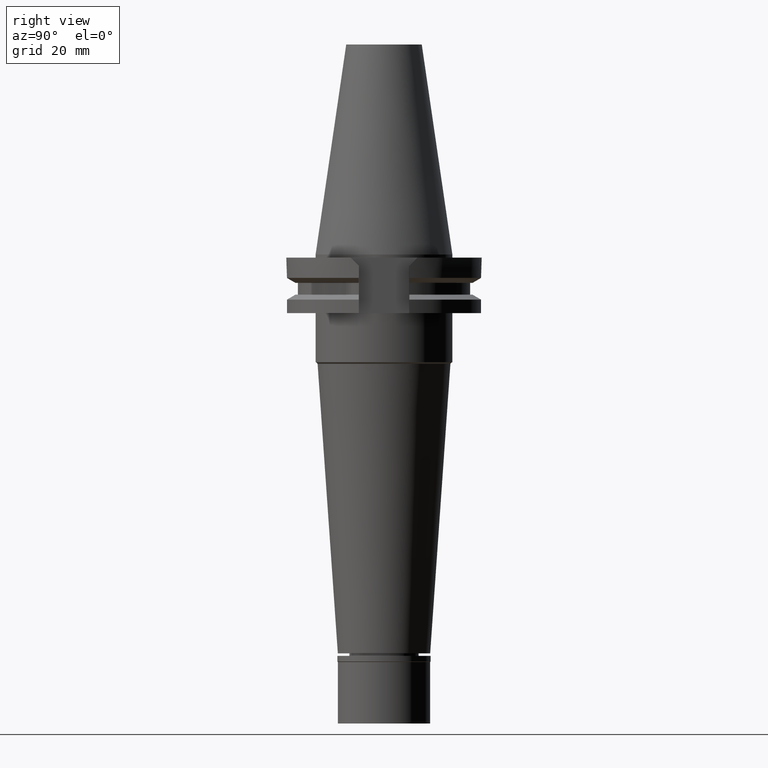
[diagram: clean part render]
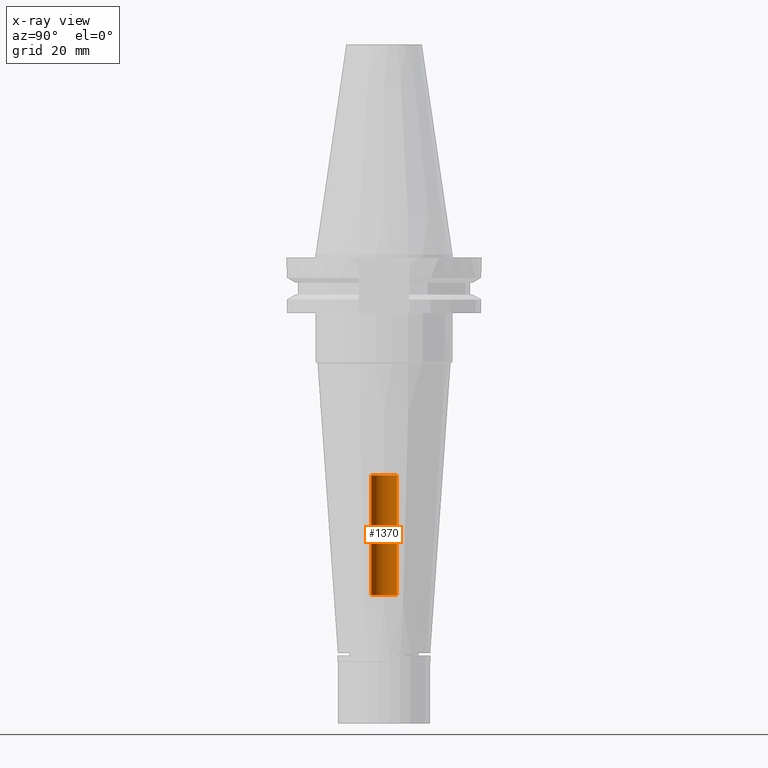
[diagram: x-ray — body ghosted, one internal face saturated and labeled with its STEP entity id]
A machine part, right view, then the same camera in x-ray: the body is ghosted and one INTERNAL B-rep face — a face not visible from any outside direction — is saturated and labeled: STEP entity #1370.
In plain terms, the highlighted cylindrical surface (edge-blend (fillet) strip) has radius 4.2 mm, axis along (0, 0, -1).
Its self-contained STEP definition (entity closure, byte-faithful):
#32 = CARTESIAN_POINT ( 'NONE',  ( 0.0000000000000000000, 2.191474830903999739E-14, -71.75000000000000000 ) ) ;
#202 = FACE_OUTER_BOUND ( 'NONE', #1153, .T. ) ;
#283 = ORIENTED_EDGE ( 'NONE', *, *, #1494, .T. ) ;
#319 = ORIENTED_EDGE ( 'NONE', *, *, #1761, .T. ) ;
#593 = DIRECTION ( 'NONE',  ( 0.0000000000000000000, 0.0000000000000000000, 1.000000000000000000 ) ) ;
#751 = CARTESIAN_POINT ( 'NONE',  ( 0.0000000000000000000, -4.200000000000000178, -71.75000000000000000 ) ) ;
#760 = CARTESIAN_POINT ( 'NONE',  ( 0.0000000000000000000, 4.200000000000000178, -71.75000000000000000 ) ) ;
#784 = AXIS2_PLACEMENT_3D ( 'NONE', #2022, #2806, #2818 ) ;
#875 = EDGE_CURVE ( 'NONE', #2645, #3207, #2747, .T. ) ;
#919 = CARTESIAN_POINT ( 'NONE',  ( 0.0000000000000000000, 2.191474830903999739E-14, -110.7000000000000028 ) ) ;
#1153 = EDGE_LOOP ( 'NONE', ( #283, #2236, #1663, #319 ) ) ;
#1173 = DIRECTION ( 'NONE',  ( 0.0000000000000000000, -1.000000000000000000, 0.0000000000000000000 ) ) ;
#1244 = CYLINDRICAL_SURFACE ( 'NONE', #784, 4.200000000000000178 ) ;
#1269 = CARTESIAN_POINT ( 'NONE',  ( 0.0000000000000000000, -4.200000000000000178, -110.7000000000000028 ) ) ;
#1313 = DIRECTION ( 'NONE',  ( 0.0000000000000000000, 1.000000000000000000, 0.0000000000000000000 ) ) ;
#1315 = VECTOR ( 'NONE', #1441, 1000.000000000000000 ) ;
#1370 = ADVANCED_FACE ( 'NONE', ( #202 ), #1244, .F. ) ;
#1379 = VECTOR ( 'NONE', #2032, 1000.000000000000000 ) ;
#1441 = DIRECTION ( 'NONE',  ( 0.0000000000000000000, 0.0000000000000000000, 1.000000000000000000 ) ) ;
#1494 = EDGE_CURVE ( 'NONE', #1885, #3207, #3342, .T. ) ;
#1663 = ORIENTED_EDGE ( 'NONE', *, *, #3361, .T. ) ;
#1672 = VERTEX_POINT ( 'NONE', #1952 ) ;
#1761 = EDGE_CURVE ( 'NONE', #1672, #1885, #2541, .T. ) ;
#1885 = VERTEX_POINT ( 'NONE', #760 ) ;
#1928 = CARTESIAN_POINT ( 'NONE',  ( 0.0000000000000000000, -4.200000000000000178, -110.7000000000000028 ) ) ;
#1952 = CARTESIAN_POINT ( 'NONE',  ( 0.0000000000000000000, 4.200000000000000178, -110.7000000000000028 ) ) ;
#2022 = CARTESIAN_POINT ( 'NONE',  ( 0.0000000000000000000, 2.191474830903999739E-14, 78.94750000000000512 ) ) ;
#2032 = DIRECTION ( 'NONE',  ( 0.0000000000000000000, 0.0000000000000000000, 1.000000000000000000 ) ) ;
#2151 = CIRCLE ( 'NONE', #2597, 4.200000000000000178 ) ;
#2236 = ORIENTED_EDGE ( 'NONE', *, *, #875, .F. ) ;
#2541 = LINE ( 'NONE', #2560, #1379 ) ;
#2560 = CARTESIAN_POINT ( 'NONE',  ( 0.0000000000000000000, 4.200000000000000178, -110.7000000000000028 ) ) ;
#2597 = AXIS2_PLACEMENT_3D ( 'NONE', #919, #2721, #1173 ) ;
#2620 = AXIS2_PLACEMENT_3D ( 'NONE', #32, #593, #1313 ) ;
#2645 = VERTEX_POINT ( 'NONE', #1269 ) ;
#2721 = DIRECTION ( 'NONE',  ( 0.0000000000000000000, 0.0000000000000000000, -1.000000000000000000 ) ) ;
#2747 = LINE ( 'NONE', #1928, #1315 ) ;
#2806 = DIRECTION ( 'NONE',  ( 0.0000000000000000000, 0.0000000000000000000, -1.000000000000000000 ) ) ;
#2818 = DIRECTION ( 'NONE',  ( 0.0000000000000000000, -1.000000000000000000, 0.0000000000000000000 ) ) ;
#3207 = VERTEX_POINT ( 'NONE', #751 ) ;
#3342 = CIRCLE ( 'NONE', #2620, 4.200000000000000178 ) ;
#3361 = EDGE_CURVE ( 'NONE', #2645, #1672, #2151, .T. ) ;